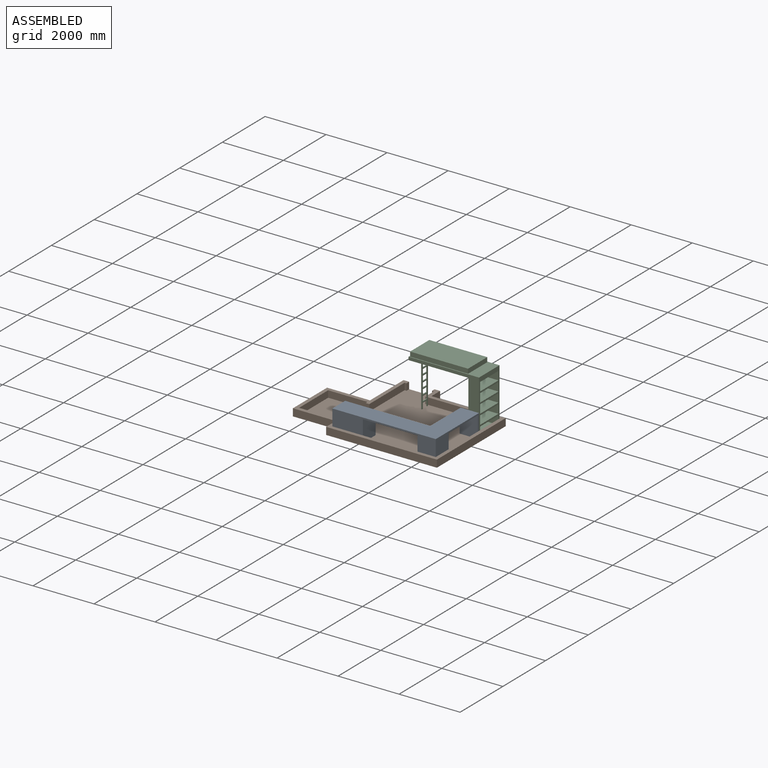
[diagram: assembled view]
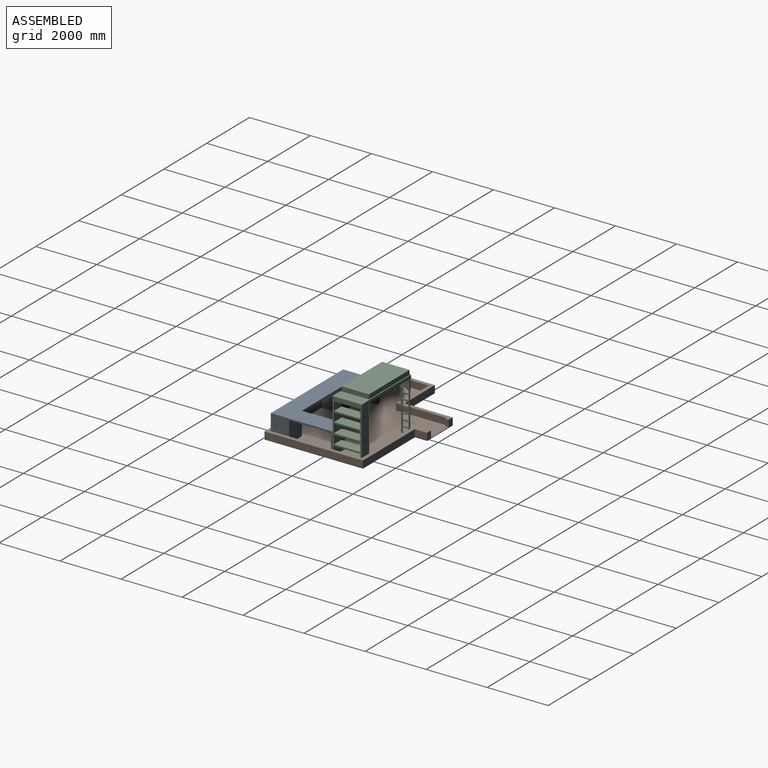
[diagram: assembled view, second angle]
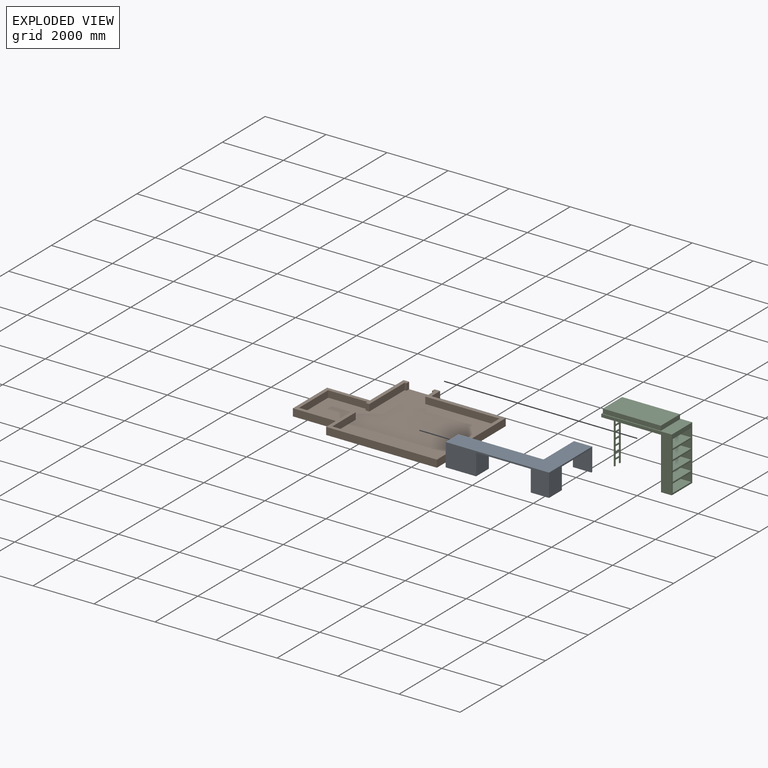
[diagram: exploded view]
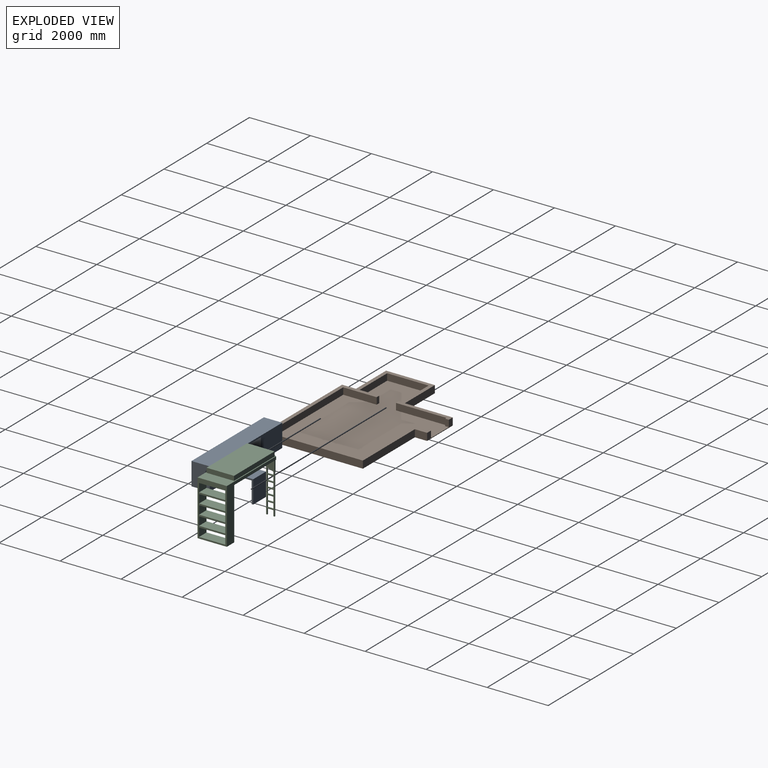
[diagram: exploded view, second angle]
ASSEMBLY  parts=3 mates=5
PART A: 16 faces, bbox 2023x3391x750 mm
  f0: plane 1791x600mm, normal (0,0,-1), area 1074600mm2, adj f2,f6,f11,f14
  f1: plane 1373x600mm, normal (0,0,-1), area 823800mm2, adj f3,f5,f9,f12
  f2: plane 3391x750mm, normal (1,0,0), area 1289550mm2, adj f0,f3,f7,f8,f11,f13,f14,f15
  f3: plane 2023x750mm, normal (0,1,0), area 556150mm2, adj f1,f2,f4,f8,f9,f10,f12,f13
  f4: plane 750x600mm, normal (-1,0,0), area 450000mm2, adj f3,f5,f8,f10
  f5: plane 1423x750mm, normal (0,-1,0), area 106150mm2, adj f1,f4,f6,f8,f9,f10
  f6: plane 2791x750mm, normal (-1,0,0), area 839550mm2, adj f0,f5,f7,f8,f14,f15
  f7: plane 750x600mm, normal (0,-1,0), area 450000mm2, adj f2,f6,f8,f15
  f8: plane 3391x2023mm, normal (0,0,1), area 2888400mm2, adj f2,f3,f4,f5,f6,f7
  f9: plane 700x600mm, normal (1,0,0), area 420000mm2, adj f1,f3,f5,f10
  f10: plane 600x50mm, normal (0,0,-1), area 30000mm2, adj f3,f4,f5,f9
  f11: plane 700x600mm, normal (0,-1,0), area 420000mm2, adj f0,f2,f12,f13
  f12: plane 700x600mm, normal (-1,0,0), area 420000mm2, adj f1,f3,f11,f13
  f13: plane 600x600mm, normal (0,0,-1), area 360000mm2, adj f2,f3,f11,f12
  f14: plane 700x600mm, normal (0,1,0), area 420000mm2, adj f0,f2,f6,f15
  f15: plane 1000x600mm, normal (0,0,-1), area 600000mm2, adj f2,f6,f7,f14
PART B: 30 faces, bbox 5039x3626x240 mm
  f0: plane 1570x240mm, normal (-1,0,0), area 376800mm2, adj f8,f26,f27,f29
  f1: plane 220x85mm, normal (-1,0,0), area 18700mm2, adj f20,f25,f28,f29
  f2: plane 643x220mm, normal (-1,0,0), area 141460mm2, adj f19,f23,f28,f29
  f3: plane 455x240mm, normal (-1,0,0), area 109200mm2, adj f4,f22,f27,f29
  f4: plane 3631x240mm, normal (0,-1,0), area 871440mm2, adj f3,f5,f27,f29
  f5: plane 3223x240mm, normal (1,0,0), area 773520mm2, adj f4,f6,f27,f29
  f6: plane 2433x240mm, normal (0,1,0), area 583920mm2, adj f5,f7,f27,f29
  f7: plane 403x240mm, normal (1,0,0), area 96720mm2, adj f6,f8,f27,f29
  f8: plane 1198x240mm, normal (0,1,0), area 104260mm2, adj f0,f7,f17,f18,f27,f28,f29
  f9: plane 1655x220mm, normal (1,0,0), area 364100mm2, adj f16,f20,f28,f29
  f10: plane 1098x220mm, normal (1,0,0), area 241560mm2, adj f11,f19,f28,f29
  f11: plane 3391x220mm, normal (0,1,0), area 746020mm2, adj f10,f12,f28,f29
  f12: plane 2983x220mm, normal (-1,0,0), area 656260mm2, adj f11,f13,f28,f29
  f13: plane 2433x220mm, normal (0,-1,0), area 535260mm2, adj f12,f14,f28,f29
  f14: plane 403x220mm, normal (-1,0,0), area 88660mm2, adj f13,f15,f28,f29
  f15: plane 220x62.5mm, normal (0,-1,0), area 13750mm2, adj f14,f18,f28,f29
  f16: plane 220x62.5mm, normal (0,-1,0), area 13750mm2, adj f9,f17,f28,f29
  f17: plane 220x120mm, normal (1,0,0), area 26400mm2, adj f8,f16,f28,f29
  f18: plane 220x120mm, normal (-1,0,0), area 26400mm2, adj f8,f15,f28,f29
  f19: plane 220x120mm, normal (0,1,0), area 26400mm2, adj f2,f10,f28,f29
  f20: plane 220x120mm, normal (0,-1,0), area 26400mm2, adj f1,f9,f28,f29
  f21: plane 1601x240mm, normal (-1,0,0), area 384240mm2, adj f22,f26,f27,f29
  f22: plane 1408x240mm, normal (0,-1,0), area 337920mm2, adj f3,f21,f27,f29
  f23: plane 1288x220mm, normal (0,1,0), area 283360mm2, adj f2,f24,f28,f29
  f24: plane 1361x220mm, normal (1,0,0), area 299420mm2, adj f23,f25,f28,f29
  f25: plane 1288x220mm, normal (0,-1,0), area 283360mm2, adj f1,f24,f28,f29
  f26: plane 1408x240mm, normal (0,1,0), area 337920mm2, adj f0,f21,f27,f29
  f27: plane 5039x3626mm, normal (0,0,-1), area 14439715mm2, adj f0,f3,f4,f5,f6,f7,f8,f21
  f28: plane 4799x3506mm, normal (0,0,1), area 12430315mm2, adj f1,f2,f8,f9,f10,f11,f12,f13
  f29: plane 5039x3626mm, normal (0,0,1), area 2009400mm2, adj f0,f1,f2,f3,f4,f5,f6,f7
PART C: 79 faces, bbox 960x2340x1950 mm
  f0: plane 180x30mm, normal (1,0,0), area 5400mm2, adj f57,f58,f59,f77
  f1: plane 180x30mm, normal (-1,0,0), area 5400mm2, adj f58,f59,f62,f77
  f2: plane 160x30mm, normal (1,0,0), area 4800mm2, adj f58,f59,f75,f78
  f3: plane 160x30mm, normal (-1,0,0), area 4800mm2, adj f58,f59,f75,f78
  f4: plane 160x30mm, normal (1,0,0), area 4800mm2, adj f58,f59,f73,f76
  f5: plane 160x30mm, normal (-1,0,0), area 4800mm2, adj f58,f59,f73,f76
  f6: plane 160x30mm, normal (1,0,0), area 4800mm2, adj f58,f59,f71,f74
  f7: plane 160x30mm, normal (-1,0,0), area 4800mm2, adj f58,f59,f71,f74
  f8: plane 160x30mm, normal (1,0,0), area 4800mm2, adj f58,f59,f69,f72
  f9: plane 160x30mm, normal (-1,0,0), area 4800mm2, adj f58,f59,f69,f72
  f10: plane 160x30mm, normal (1,0,0), area 4800mm2, adj f58,f59,f67,f70
  f11: plane 160x30mm, normal (-1,0,0), area 4800mm2, adj f58,f59,f67,f70
  f12: plane 160x30mm, normal (1,0,0), area 4800mm2, adj f58,f59,f65,f68
  f13: plane 160x30mm, normal (-1,0,0), area 4800mm2, adj f58,f59,f65,f68
  f14: plane 160x30mm, normal (1,0,0), area 4800mm2, adj f58,f59,f63,f66
  f15: plane 160x30mm, normal (-1,0,0), area 4800mm2, adj f58,f59,f63,f66
  f16: plane 200x100mm, normal (0,-1,0), area 20000mm2, adj f18,f30,f55,f61
  f17: plane 100x50mm, normal (0,-1,0), area 5000mm2, adj f18,f29,f30,f56
  f18: plane 960x30mm, normal (0,0,-1), area 28800mm2, adj f16,f17,f27,f28,f29,f54,f59
  f19: plane 1800x960mm, normal (0,1,0), area 524000mm2, adj f27,f29,f30,f31,f32,f33,f34,f35
  f20: plane 1700x960mm, normal (0,-1,0), area 428000mm2, adj f21,f27,f29,f31,f32,f33,f34,f35
  f21: plane 1880x960mm, normal (0,0,-1), area 1804800mm2, adj f20,f27,f29,f53
  f22: plane 1900x150mm, normal (-1,0,0), area 285000mm2, adj f23,f25,f26,f30
  f23: plane 900x150mm, normal (0,-1,0), area 135000mm2, adj f22,f24,f26,f30
  f24: plane 1900x150mm, normal (1,0,0), area 285000mm2, adj f23,f25,f26,f30
  f25: plane 900x150mm, normal (0,1,0), area 135000mm2, adj f22,f24,f26,f30
  f26: plane 1900x900mm, normal (0,0,1), area 1710000mm2, adj f22,f23,f24,f25
  f27: plane 2310x1800mm, normal (1,0,0), area 826000mm2, adj f18,f19,f20,f21,f28,f30,f31,f52
  f28: plane 630x100mm, normal (0,-1,0), area 63000mm2, adj f18,f27,f30,f60
  f29: plane 2310x1800mm, normal (-1,0,0), area 843470.6mm2, adj f17,f18,f19,f20,f21,f30,f31,f52
  f30: plane 2340x960mm, normal (0,0,1), area 510000mm2, adj f16,f17,f19,f22,f23,f24,f25,f27
  f31: plane 960x350mm, normal (0,0,-1), area 336000mm2, adj f19,f20,f27,f29
  f32: plane 860x350mm, normal (0,0,1), area 301000mm2, adj f19,f20,f33,f34
  f33: plane 350x280mm, normal (1,0,0), area 98000mm2, adj f19,f20,f32,f35
  f34: plane 350x280mm, normal (-1,0,0), area 98000mm2, adj f19,f20,f32,f35
  f35: plane 860x350mm, normal (0,0,-1), area 301000mm2, adj f19,f20,f33,f34
  f36: plane 860x350mm, normal (0,0,1), area 301000mm2, adj f19,f20,f37,f39
  f37: plane 350x280mm, normal (-1,0,0), area 98000mm2, adj f19,f20,f36,f38
  f38: plane 860x350mm, normal (0,0,-1), area 301000mm2, adj f19,f20,f37,f39
  f39: plane 350x280mm, normal (1,0,0), area 98000mm2, adj f19,f20,f36,f38
  f40: plane 860x350mm, normal (0,0,1), area 301000mm2, adj f19,f20,f41,f42
  f41: plane 350x280mm, normal (1,0,0), area 98000mm2, adj f19,f20,f40,f43
  f42: plane 350x280mm, normal (-1,0,0), area 98000mm2, adj f19,f20,f40,f43
  f43: plane 860x350mm, normal (0,0,-1), area 301000mm2, adj f19,f20,f41,f42
  f44: plane 860x350mm, normal (0,0,1), area 301000mm2, adj f19,f20,f45,f47
  f45: plane 350x280mm, normal (-1,0,0), area 98000mm2, adj f19,f20,f44,f46
  f46: plane 860x350mm, normal (0,0,-1), area 301000mm2, adj f19,f20,f45,f47
  f47: plane 350x280mm, normal (1,0,0), area 98000mm2, adj f19,f20,f44,f46
  f48: plane 860x350mm, normal (0,0,1), area 301000mm2, adj f19,f20,f49,f50
  f49: plane 350x280mm, normal (1,0,0), area 98000mm2, adj f19,f20,f48,f51
  f50: plane 350x280mm, normal (-1,0,0), area 98000mm2, adj f19,f20,f48,f51
  f51: plane 860x350mm, normal (0,0,-1), area 301000mm2, adj f19,f20,f49,f50
  f52: plane 960x349.41mm, normal (0.34,0,-0.94), area 51080.5mm2, adj f27,f29,f53,f54
  f53: plane 960x349.41mm, normal (0,1,0), area 167717.5mm2, adj f21,f29,f52
  f54: plane 960x349.41mm, normal (0,-1,0), area 167717.5mm2, adj f18,f29,f52
  f55: plane 180x30mm, normal (1,0,0), area 5400mm2, adj f16,f30,f58,f59,f64
  f56: plane 1800x30mm, normal (-1,0,0), area 54000mm2, adj f17,f30,f57,f58,f59
  f57: plane 40x30mm, normal (0,0,-1), area 1200mm2, adj f0,f56,f58,f59
  f58: plane 1800x280mm, normal (0,-1,0), area 208000mm2, adj f0,f1,f2,f3,f4,f5,f6,f7
  f59: plane 1700x280mm, normal (0,1,0), area 200000mm2, adj f0,f1,f2,f3,f4,f5,f6,f7
  f60: plane 1800x30mm, normal (1,0,0), area 54000mm2, adj f28,f30,f58,f59,f62
  f61: plane 180x30mm, normal (-1,0,0), area 5400mm2, adj f16,f30,f58,f59,f64
  f62: plane 40x30mm, normal (0,0,-1), area 1200mm2, adj f1,f58,f59,f60
  f63: plane 200x30mm, normal (0,0,-1), area 6000mm2, adj f14,f15,f58,f59
  f64: plane 200x30mm, normal (0,0,1), area 6000mm2, adj f55,f58,f59,f61
  f65: plane 200x30mm, normal (0,0,-1), area 6000mm2, adj f12,f13,f58,f59
  f66: plane 200x30mm, normal (0,0,1), area 6000mm2, adj f14,f15,f58,f59
  f67: plane 200x30mm, normal (0,0,-1), area 6000mm2, adj f10,f11,f58,f59
  f68: plane 200x30mm, normal (0,0,1), area 6000mm2, adj f12,f13,f58,f59
  f69: plane 200x30mm, normal (0,0,-1), area 6000mm2, adj f8,f9,f58,f59
  f70: plane 200x30mm, normal (0,0,1), area 6000mm2, adj f10,f11,f58,f59
  f71: plane 200x30mm, normal (0,0,-1), area 6000mm2, adj f6,f7,f58,f59
  f72: plane 200x30mm, normal (0,0,1), area 6000mm2, adj f8,f9,f58,f59
  f73: plane 200x30mm, normal (0,0,-1), area 6000mm2, adj f4,f5,f58,f59
  f74: plane 200x30mm, normal (0,0,1), area 6000mm2, adj f6,f7,f58,f59
  f75: plane 200x30mm, normal (0,0,-1), area 6000mm2, adj f2,f3,f58,f59
  f76: plane 200x30mm, normal (0,0,1), area 6000mm2, adj f4,f5,f58,f59
  f77: plane 200x30mm, normal (0,0,-1), area 6000mm2, adj f0,f1,f58,f59
  f78: plane 200x30mm, normal (0,0,1), area 6000mm2, adj f2,f3,f58,f59
PLACE A rot(axis=(0,0,-1),90deg) t=(-18.28,-1086.83,273.49)mm
PLACE B t=(-1113.78,-195.33,-476.51)mm fixed
PLACE C rot(axis=(0,0,-1),90deg) t=(-748.28,816.17,1323.49)mm
MATE planar A.f3 <-> B.f12  axis (1,0,0) through (581.72,336.17,273.49)mm
MATE planar A.f2 <-> B.f11  axis (0,-1,0) through (-1308.22,-1686.83,-77.21)mm
MATE planar C.f19 <-> B.f12  axis (1,0,0) through (581.72,816.17,538.37)mm
MATE planar C.f29 <-> B.f13  axis (0,1,0) through (231.72,1296.17,1223.49)mm
MATE planar C.f31 <-> B.f28  axis (0,0,-1) through (406.72,816.17,-476.51)mm
